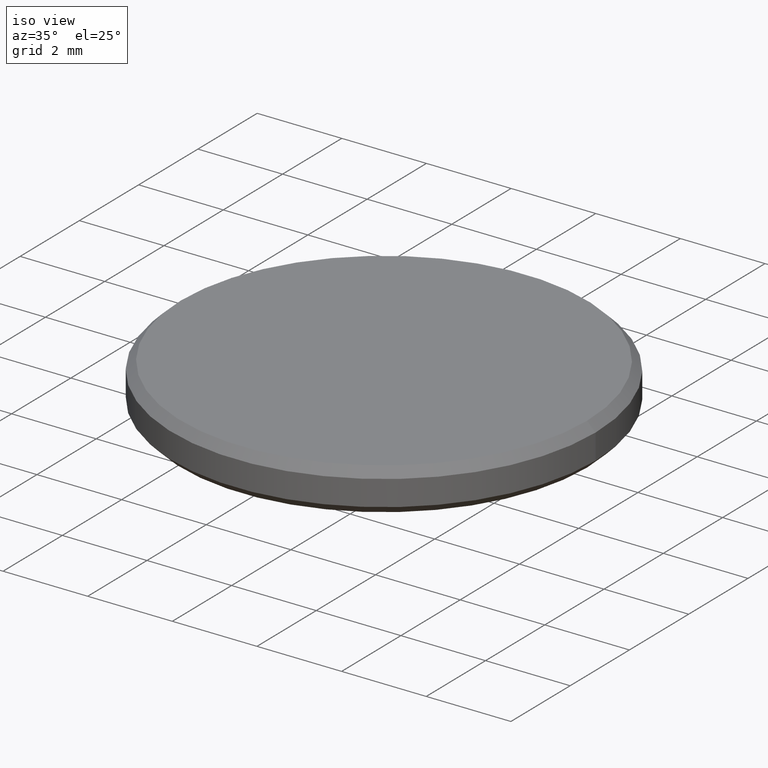
[diagram: clean part render]
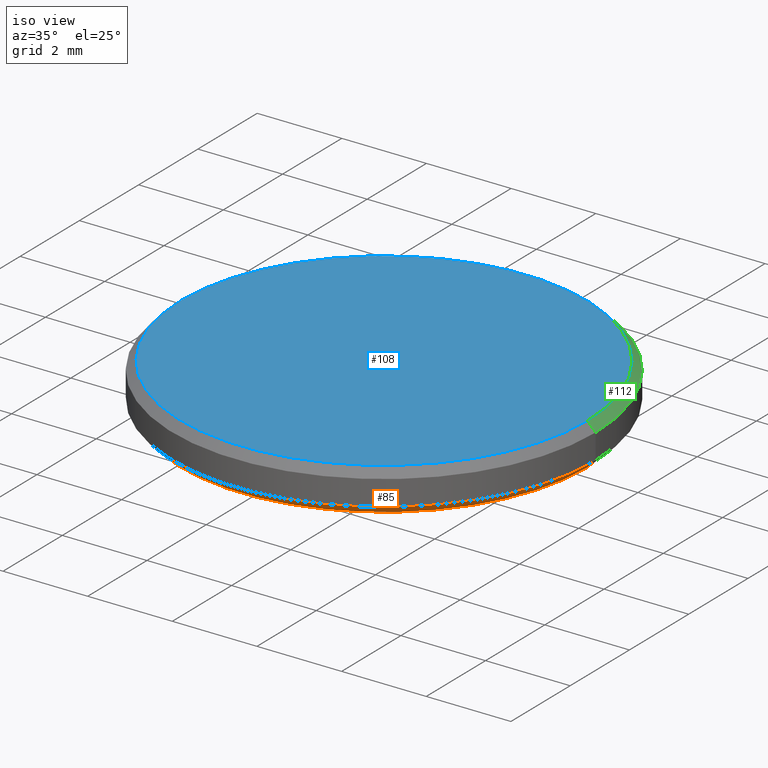
[diagram: same view with three faces highlighted in distinct colors, each labeled with its STEP entity id]
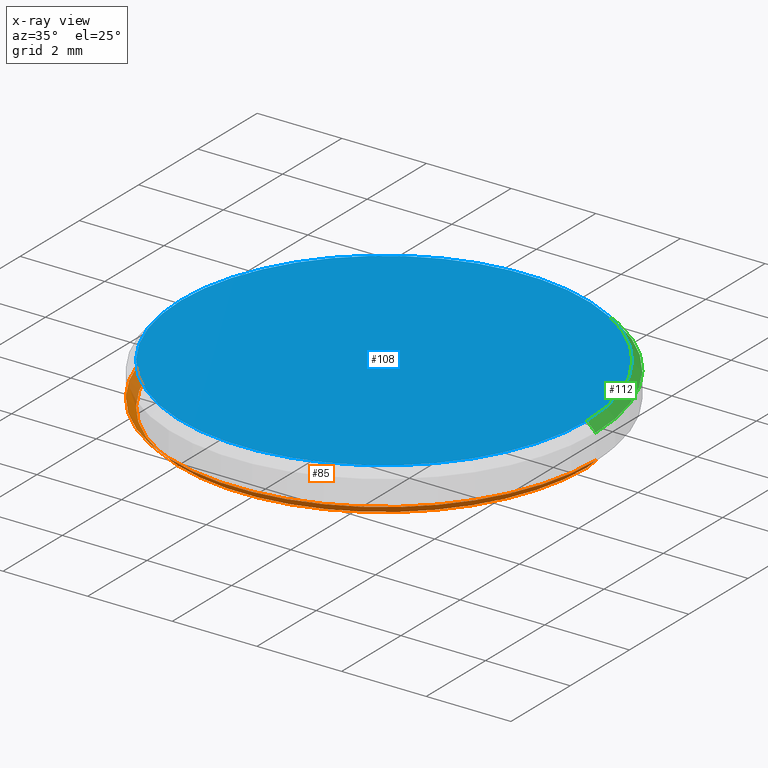
[diagram: x-ray of the same camera — body ghosted, the three highlighted faces saturated]
A machine part, iso view with three faces highlighted in distinct colors.
The next image is the same camera in x-ray (body ghosted, the three faces saturated) — at least one of them is partly hidden behind the body in this view.
Their STEP definitions:

[orange] entity #85 — the highlighted conical surface has half-angle 45 deg.
#9 = EDGE_LOOP ( 'NONE', ( #211, #41, #50, #43 ) ) ;
#19 = CARTESIAN_POINT ( 'NONE',  ( 4.799999999999999822, 0.000000000000000000, 0.000000000000000000 ) ) ;
#32 = DIRECTION ( 'NONE',  ( 1.000000000000000000, 0.000000000000000000, 0.000000000000000000 ) ) ;
#35 = CONICAL_SURFACE ( 'NONE', #174, 5.000000000000000000, 0.7853981633974503884 ) ;
#41 = ORIENTED_EDGE ( 'NONE', *, *, #194, .F. ) ;
#43 = ORIENTED_EDGE ( 'NONE', *, *, #82, .F. ) ;
#45 = AXIS2_PLACEMENT_3D ( 'NONE', #68, #103, #32 ) ;
#46 = FACE_OUTER_BOUND ( 'NONE', #9, .T. ) ;
#50 = ORIENTED_EDGE ( 'NONE', *, *, #193, .T. ) ;
#60 = DIRECTION ( 'NONE',  ( 1.000000000000000000, 0.000000000000000000, 0.000000000000000000 ) ) ;
#62 = LINE ( 'NONE', #157, #162 ) ;
#68 = CARTESIAN_POINT ( 'NONE',  ( 0.000000000000000000, 0.000000000000000000, 0.1999999999999996503 ) ) ;
#76 = AXIS2_PLACEMENT_3D ( 'NONE', #100, #229, #60 ) ;
#82 = EDGE_CURVE ( 'NONE', #84, #235, #215, .T. ) ;
#84 = VERTEX_POINT ( 'NONE', #143 ) ;
#85 = ADVANCED_FACE ( 'NONE', ( #46 ), #35, .T. ) ;
#98 = CARTESIAN_POINT ( 'NONE',  ( 5.000000000000000000, 0.000000000000000000, 0.1999999999999996503 ) ) ;
#100 = CARTESIAN_POINT ( 'NONE',  ( 0.000000000000000000, 0.000000000000000000, 0.000000000000000000 ) ) ;
#103 = DIRECTION ( 'NONE',  ( -0.000000000000000000, -0.000000000000000000, 1.000000000000000000 ) ) ;
#105 = CARTESIAN_POINT ( 'NONE',  ( 0.000000000000000000, 0.000000000000000000, 0.1999999999999996503 ) ) ;
#114 = CARTESIAN_POINT ( 'NONE',  ( 5.000000000000000000, 6.123233995736766282E-16, 0.1999999999999996503 ) ) ;
#115 = CARTESIAN_POINT ( 'NONE',  ( -4.799999999999999822, 6.000769315822029754E-16, 0.000000000000000000 ) ) ;
#119 = DIRECTION ( 'NONE',  ( 0.7071067811865490160, 0.000000000000000000, 0.7071067811865459074 ) ) ;
#120 = CIRCLE ( 'NONE', #76, 4.799999999999999822 ) ;
#140 = LINE ( 'NONE', #98, #192 ) ;
#143 = CARTESIAN_POINT ( 'NONE',  ( -5.000000000000000000, 0.000000000000000000, 0.1999999999999996503 ) ) ;
#147 = VERTEX_POINT ( 'NONE', #115 ) ;
#157 = CARTESIAN_POINT ( 'NONE',  ( -5.000000000000000000, 6.123233995736765296E-16, 0.1999999999999996503 ) ) ;
#162 = VECTOR ( 'NONE', #208, 1000.000000000000000 ) ;
#174 = AXIS2_PLACEMENT_3D ( 'NONE', #105, #179, #234 ) ;
#179 = DIRECTION ( 'NONE',  ( -0.000000000000000000, -0.000000000000000000, 1.000000000000000000 ) ) ;
#185 = EDGE_CURVE ( 'NONE', #147, #84, #62, .T. ) ;
#192 = VECTOR ( 'NONE', #119, 1000.000000000000000 ) ;
#193 = EDGE_CURVE ( 'NONE', #238, #235, #140, .T. ) ;
#194 = EDGE_CURVE ( 'NONE', #238, #147, #120, .T. ) ;
#208 = DIRECTION ( 'NONE',  ( -0.7071067811865490160, 8.659560562354950115E-17, 0.7071067811865459074 ) ) ;
#211 = ORIENTED_EDGE ( 'NONE', *, *, #185, .F. ) ;
#215 = CIRCLE ( 'NONE', #45, 5.000000000000000000 ) ;
#229 = DIRECTION ( 'NONE',  ( -0.000000000000000000, -0.000000000000000000, -1.000000000000000000 ) ) ;
#234 = DIRECTION ( 'NONE',  ( 1.000000000000000000, 0.000000000000000000, 0.000000000000000000 ) ) ;
#235 = VERTEX_POINT ( 'NONE', #114 ) ;
#238 = VERTEX_POINT ( 'NONE', #19 ) ;

[blue] entity #108 — the highlighted planar face has unit normal (0, 0, 1).
#6 = DIRECTION ( 'NONE',  ( 0.000000000000000000, 0.000000000000000000, 1.000000000000000000 ) ) ;
#20 = EDGE_CURVE ( 'NONE', #216, #51, #139, .T. ) ;
#22 = CARTESIAN_POINT ( 'NONE',  ( 0.000000000000000000, 0.000000000000000000, 1.000000000000000000 ) ) ;
#26 = ORIENTED_EDGE ( 'NONE', *, *, #61, .T. ) ;
#29 = AXIS2_PLACEMENT_3D ( 'NONE', #145, #95, #220 ) ;
#31 = DIRECTION ( 'NONE',  ( 0.000000000000000000, 0.000000000000000000, 1.000000000000000000 ) ) ;
#37 = FACE_OUTER_BOUND ( 'NONE', #141, .T. ) ;
#51 = VERTEX_POINT ( 'NONE', #165 ) ;
#61 = EDGE_CURVE ( 'NONE', #51, #216, #233, .T. ) ;
#77 = CARTESIAN_POINT ( 'NONE',  ( -4.800000000000002487, 0.000000000000000000, 1.000000000000000000 ) ) ;
#91 = DIRECTION ( 'NONE',  ( 1.000000000000000000, 0.000000000000000000, 0.000000000000000000 ) ) ;
#92 = CARTESIAN_POINT ( 'NONE',  ( 0.000000000000000000, 0.000000000000000000, 1.000000000000000000 ) ) ;
#95 = DIRECTION ( 'NONE',  ( 0.000000000000000000, 0.000000000000000000, 1.000000000000000000 ) ) ;
#106 = AXIS2_PLACEMENT_3D ( 'NONE', #92, #31, #91 ) ;
#108 = ADVANCED_FACE ( 'NONE', ( #37 ), #170, .T. ) ;
#139 = CIRCLE ( 'NONE', #106, 4.800000000000002487 ) ;
#141 = EDGE_LOOP ( 'NONE', ( #201, #26 ) ) ;
#145 = CARTESIAN_POINT ( 'NONE',  ( 0.000000000000000000, 0.000000000000000000, 1.000000000000000000 ) ) ;
#165 = CARTESIAN_POINT ( 'NONE',  ( 4.800000000000002487, 6.000769315822031726E-16, 1.000000000000000000 ) ) ;
#170 = PLANE ( 'NONE',  #224 ) ;
#201 = ORIENTED_EDGE ( 'NONE', *, *, #20, .T. ) ;
#205 = DIRECTION ( 'NONE',  ( 1.000000000000000000, 0.000000000000000000, -0.000000000000000000 ) ) ;
#216 = VERTEX_POINT ( 'NONE', #77 ) ;
#220 = DIRECTION ( 'NONE',  ( 1.000000000000000000, 0.000000000000000000, 0.000000000000000000 ) ) ;
#224 = AXIS2_PLACEMENT_3D ( 'NONE', #22, #6, #205 ) ;
#233 = CIRCLE ( 'NONE', #29, 4.800000000000002487 ) ;

[green] entity #112 — the highlighted conical surface has half-angle 45 deg.
#25 = AXIS2_PLACEMENT_3D ( 'NONE', #210, #94, #149 ) ;
#29 = AXIS2_PLACEMENT_3D ( 'NONE', #145, #95, #220 ) ;
#39 = CARTESIAN_POINT ( 'NONE',  ( 5.000000000000000000, 6.123233995736766282E-16, 0.8000000000000012657 ) ) ;
#48 = DIRECTION ( 'NONE',  ( 0.7071067811865460184, 8.659560562354913137E-17, -0.7071067811865489050 ) ) ;
#51 = VERTEX_POINT ( 'NONE', #165 ) ;
#54 = CONICAL_SURFACE ( 'NONE', #177, 4.800000000000002487, 0.7853981633974461696 ) ;
#55 = LINE ( 'NONE', #169, #96 ) ;
#57 = ORIENTED_EDGE ( 'NONE', *, *, #61, .F. ) ;
#61 = EDGE_CURVE ( 'NONE', #51, #216, #233, .T. ) ;
#69 = LINE ( 'NONE', #218, #131 ) ;
#70 = EDGE_LOOP ( 'NONE', ( #57, #146, #136, #222 ) ) ;
#75 = DIRECTION ( 'NONE',  ( -0.7071067811865460184, 0.000000000000000000, -0.7071067811865489050 ) ) ;
#77 = CARTESIAN_POINT ( 'NONE',  ( -4.800000000000002487, 0.000000000000000000, 1.000000000000000000 ) ) ;
#78 = DIRECTION ( 'NONE',  ( 0.000000000000000000, 0.000000000000000000, -1.000000000000000000 ) ) ;
#81 = CARTESIAN_POINT ( 'NONE',  ( 0.000000000000000000, 0.000000000000000000, 1.000000000000000000 ) ) ;
#87 = EDGE_CURVE ( 'NONE', #51, #129, #69, .T. ) ;
#94 = DIRECTION ( 'NONE',  ( 0.000000000000000000, 0.000000000000000000, -1.000000000000000000 ) ) ;
#95 = DIRECTION ( 'NONE',  ( 0.000000000000000000, 0.000000000000000000, 1.000000000000000000 ) ) ;
#96 = VECTOR ( 'NONE', #75, 1000.000000000000114 ) ;
#112 = ADVANCED_FACE ( 'NONE', ( #135 ), #54, .T. ) ;
#129 = VERTEX_POINT ( 'NONE', #39 ) ;
#131 = VECTOR ( 'NONE', #48, 1000.000000000000114 ) ;
#135 = FACE_OUTER_BOUND ( 'NONE', #70, .T. ) ;
#136 = ORIENTED_EDGE ( 'NONE', *, *, #209, .F. ) ;
#145 = CARTESIAN_POINT ( 'NONE',  ( 0.000000000000000000, 0.000000000000000000, 1.000000000000000000 ) ) ;
#146 = ORIENTED_EDGE ( 'NONE', *, *, #87, .T. ) ;
#149 = DIRECTION ( 'NONE',  ( 1.000000000000000000, 0.000000000000000000, 0.000000000000000000 ) ) ;
#155 = DIRECTION ( 'NONE',  ( -1.000000000000000000, 0.000000000000000000, 0.000000000000000000 ) ) ;
#159 = CIRCLE ( 'NONE', #25, 5.000000000000000000 ) ;
#165 = CARTESIAN_POINT ( 'NONE',  ( 4.800000000000002487, 6.000769315822031726E-16, 1.000000000000000000 ) ) ;
#169 = CARTESIAN_POINT ( 'NONE',  ( -4.800000000000002487, 0.000000000000000000, 1.000000000000000000 ) ) ;
#177 = AXIS2_PLACEMENT_3D ( 'NONE', #81, #78, #155 ) ;
#190 = CARTESIAN_POINT ( 'NONE',  ( -5.000000000000000000, 0.000000000000000000, 0.8000000000000012657 ) ) ;
#191 = VERTEX_POINT ( 'NONE', #190 ) ;
#209 = EDGE_CURVE ( 'NONE', #191, #129, #159, .T. ) ;
#210 = CARTESIAN_POINT ( 'NONE',  ( 0.000000000000000000, 0.000000000000000000, 0.8000000000000012657 ) ) ;
#216 = VERTEX_POINT ( 'NONE', #77 ) ;
#218 = CARTESIAN_POINT ( 'NONE',  ( 4.800000000000002487, 5.878304635907297169E-16, 1.000000000000000000 ) ) ;
#220 = DIRECTION ( 'NONE',  ( 1.000000000000000000, 0.000000000000000000, 0.000000000000000000 ) ) ;
#222 = ORIENTED_EDGE ( 'NONE', *, *, #228, .F. ) ;
#228 = EDGE_CURVE ( 'NONE', #216, #191, #55, .T. ) ;
#233 = CIRCLE ( 'NONE', #29, 4.800000000000002487 ) ;